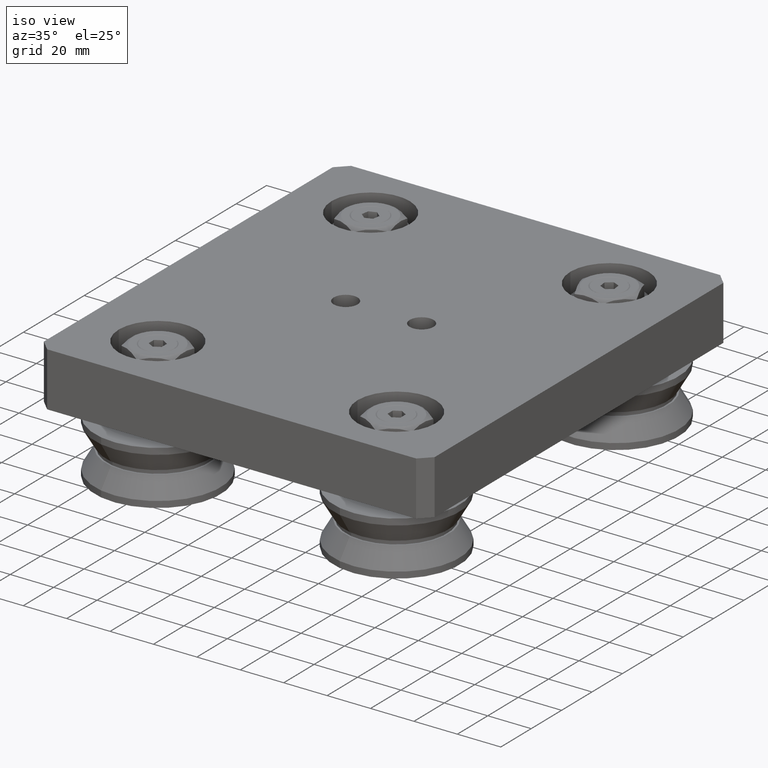
[diagram: clean part render]
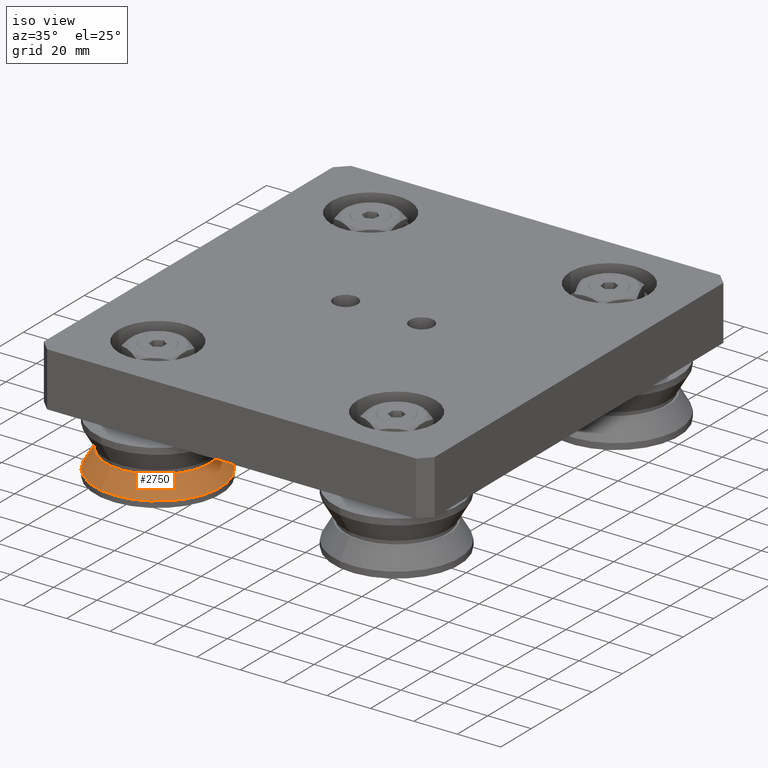
[diagram: same view with one face highlighted and labeled with its STEP entity id]
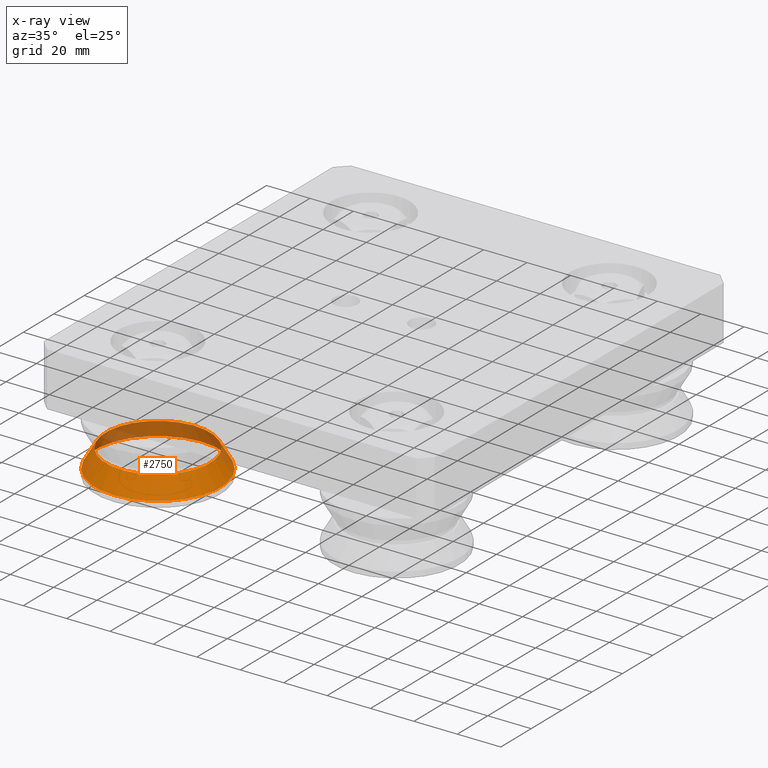
[diagram: x-ray of the same camera — body ghosted, the highlighted face saturated]
A machine part, iso view. The second image highlights one B-rep face of the part: STEP entity #2750.
The next image is the same camera in x-ray: the body ghosted, the highlighted face saturated — about 31% of this face is hidden behind the body in this view.
In plain terms, the highlighted conical surface has half-angle 30 deg.
Its self-contained STEP definition (entity closure, byte-faithful):
#95=CONICAL_SURFACE('',#3224,26.5007386859688,0.523598775598299);
#320=CIRCLE('',#3223,29.);
#321=CIRCLE('',#3225,24.0014773719376);
#491=FACE_OUTER_BOUND('',#694,.T.);
#694=EDGE_LOOP('',(#2296,#2297,#2298,#2299));
#913=LINE('',#4784,#1128);
#1128=VECTOR('',#3950,26.5007386859688);
#1342=VERTEX_POINT('',#4778);
#1343=VERTEX_POINT('',#4782);
#1670=EDGE_CURVE('',#1342,#1342,#320,.T.);
#1672=EDGE_CURVE('',#1343,#1343,#321,.T.);
#1673=EDGE_CURVE('',#1343,#1342,#913,.T.);
#2296=ORIENTED_EDGE('',*,*,#1672,.F.);
#2297=ORIENTED_EDGE('',*,*,#1673,.T.);
#2298=ORIENTED_EDGE('',*,*,#1670,.T.);
#2299=ORIENTED_EDGE('',*,*,#1673,.F.);
#2750=ADVANCED_FACE('',(#491),#95,.T.);
#3223=AXIS2_PLACEMENT_3D('',#4779,#3943,#3944);
#3224=AXIS2_PLACEMENT_3D('',#4781,#3946,#3947);
#3225=AXIS2_PLACEMENT_3D('',#4783,#3948,#3949);
#3943=DIRECTION('center_axis',(1.,0.,0.));
#3944=DIRECTION('ref_axis',(0.,1.,0.));
#3946=DIRECTION('center_axis',(-1.,0.,0.));
#3947=DIRECTION('ref_axis',(0.,1.,0.));
#3948=DIRECTION('center_axis',(1.,0.,0.));
#3949=DIRECTION('ref_axis',(0.,1.,0.));
#3950=DIRECTION('',(-0.866025403784439,-0.5,-6.12323399573676E-17));
#4778=CARTESIAN_POINT('',(-9.60769515458676,-29.,-3.55147571752732E-15));
#4779=CARTESIAN_POINT('Origin',(-9.60769515458676,0.,0.));
#4781=CARTESIAN_POINT('Origin',(-5.27884757729338,0.,0.));
#4782=CARTESIAN_POINT('',(-0.95,-24.0014773719376,-2.9393332438351E-15));
#4783=CARTESIAN_POINT('Origin',(-0.95,0.,0.));
#4784=CARTESIAN_POINT('',(-5.27884757729338,-26.5007386859688,-3.24540448068121E-15));